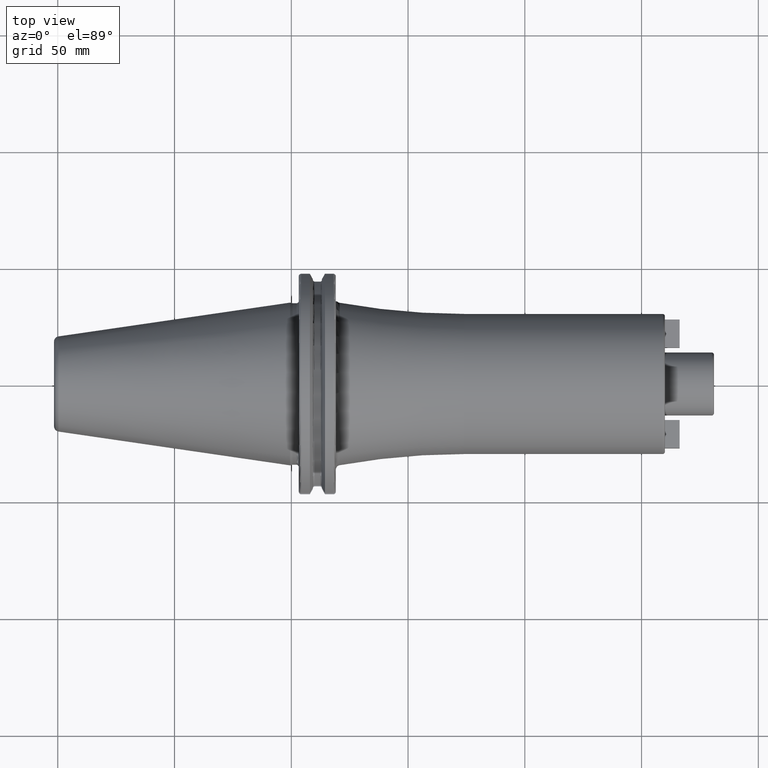
[diagram: clean part render]
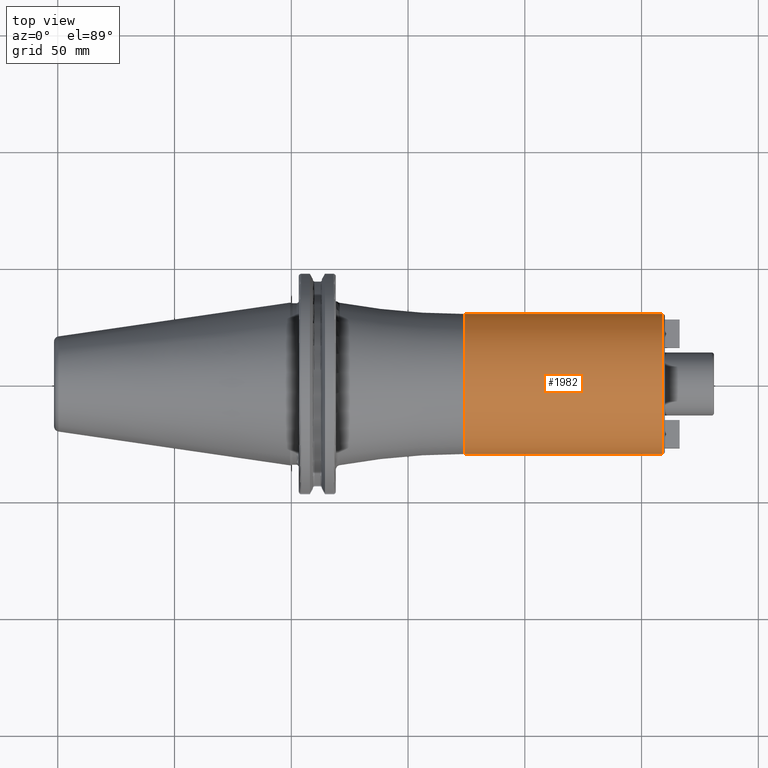
[diagram: same view with one face highlighted and labeled with its STEP entity id]
A machine part, top view. The second image highlights one B-rep face of the part: STEP entity #1982.
In plain terms, the highlighted cylindrical surface (partial cylindrical patch) has radius 30 mm, axis along (1, 0, 0).
Its self-contained STEP definition (entity closure, byte-faithful):
#227=DIRECTION('',(-1.E0,0.E0,0.E0));
#228=VECTOR('',#227,8.495E1);
#229=CARTESIAN_POINT('',(1.59E2,-3.E1,7.135812568718E-13));
#230=LINE('',#229,#228);
#236=DIRECTION('',(-1.E0,0.E0,0.E0));
#237=VECTOR('',#236,8.495E1);
#238=CARTESIAN_POINT('',(1.59E2,3.E1,-7.144997419711E-13));
#239=LINE('',#238,#237);
#240=CARTESIAN_POINT('',(7.405E1,0.E0,0.E0));
#241=DIRECTION('',(1.E0,0.E0,0.E0));
#242=DIRECTION('',(0.E0,1.E0,0.E0));
#243=AXIS2_PLACEMENT_3D('',#240,#241,#242);
#245=CARTESIAN_POINT('',(1.59E2,0.E0,0.E0));
#246=DIRECTION('',(-1.E0,0.E0,0.E0));
#247=DIRECTION('',(0.E0,-1.E0,0.E0));
#248=AXIS2_PLACEMENT_3D('',#245,#246,#247);
#1614=CARTESIAN_POINT('',(1.59E2,3.E1,0.E0));
#1615=CARTESIAN_POINT('',(1.59E2,-3.E1,0.E0));
#1616=VERTEX_POINT('',#1614);
#1617=VERTEX_POINT('',#1615);
#1672=CARTESIAN_POINT('',(7.405E1,3.E1,0.E0));
#1673=CARTESIAN_POINT('',(7.405E1,-3.E1,0.E0));
#1674=VERTEX_POINT('',#1672);
#1675=VERTEX_POINT('',#1673);
#1970=CARTESIAN_POINT('',(1.09525E1,0.E0,0.E0));
#1971=DIRECTION('',(1.E0,0.E0,0.E0));
#1972=DIRECTION('',(0.E0,-1.E0,0.E0));
#1973=AXIS2_PLACEMENT_3D('',#1970,#1971,#1972);
#1974=CYLINDRICAL_SURFACE('',#1973,3.E1);
#1975=ORIENTED_EDGE('',*,*,#1921,.F.);
#1976=ORIENTED_EDGE('',*,*,#1965,.F.);
#1978=ORIENTED_EDGE('',*,*,#1977,.F.);
#1979=ORIENTED_EDGE('',*,*,#1961,.T.);
#1980=EDGE_LOOP('',(#1975,#1976,#1978,#1979));
#1981=FACE_OUTER_BOUND('',#1980,.F.);
#1982=ADVANCED_FACE('',(#1981),#1974,.T.);
#244=CIRCLE('',#243,3.E1);
#249=CIRCLE('',#248,3.E1);
#1921=EDGE_CURVE('',#1674,#1675,#244,.T.);
#1961=EDGE_CURVE('',#1617,#1675,#230,.T.);
#1965=EDGE_CURVE('',#1616,#1674,#239,.T.);
#1977=EDGE_CURVE('',#1617,#1616,#249,.T.);